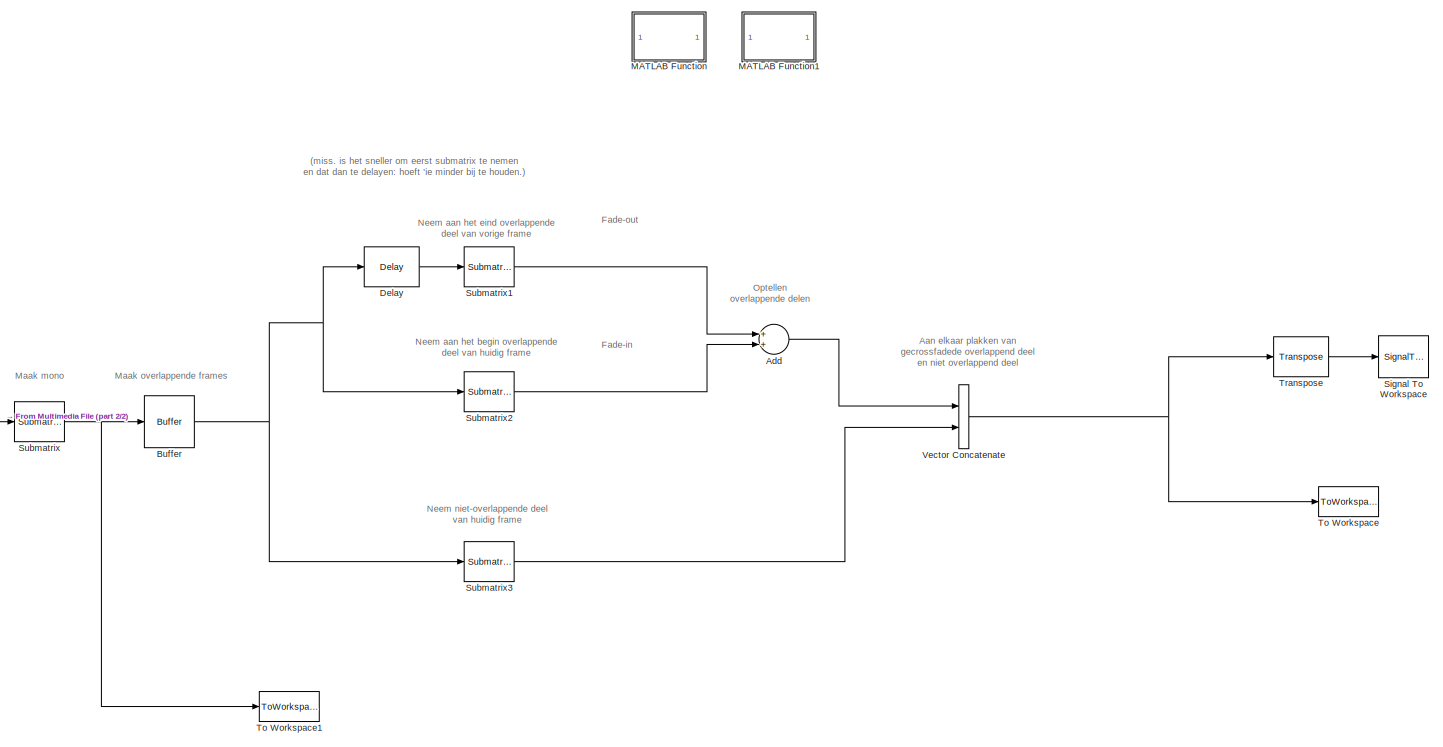
[diagram: root canvas - part 1/2, most of the canvas]
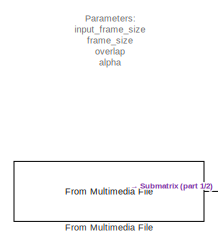
[diagram: root canvas - part 2/2, middle left region]
MODEL slx_2b7d1c36ef8d
KIND model
CONFIG InitFcn = input_frame_size = 1024;\nframe_size = 32;\noverlap = 0.4;\nalpha = 1.4;\n\nk = round(frame_size - alpha*(1-overlap)*frame_size);
BLOCK [Sum] Add
  InputSameDT = off
  Inputs = 2
  OutDataTypeStr = Inherit: Inherit via internal rule
  Ports = [2, 1]
  SaturateOnIntegerOverflow = off
BLOCK [Buffer] Buffer
  N = frame_size
  TreatMby1Signals = One channel
  V = round(frame_size*overlap)
BLOCK [Reference] Delay  REF=dspsigops/Delay
  InputProcessing = Columns as channels (frame based)
  Ports = [1, 1]
  SourceBlock = dspsigops/Delay
  SourceType = Delay
  UserDataPersistent = on
  delay = 1
  dif_ic_for_ch = off
  dif_ic_for_dly = off
  dly_unit = Frames
  ic = 0
  ic_detail = off
  reset_popup = None
BLOCK [Reference] From Multimedia File  REF=dspvision/From Multimedia File
  Ports = [0, 1]
  SourceBlock = dspvision/From Multimedia File
  SourceType = From Multimedia File
  audioDataType = double
  audioFrameSize = input_frame_size
  colorVideoFormat = Separate color signals
  computeAudioFrameSize = off
  dataOrg = Column-major
  fourcc = RGB
  inheritSampleTime = on
  inputFilename = <path>
  isIntensityVideo = off
  loop = on
  noAudioOutput = off
  numPlays = 1
  outSamplingMode = Frame based
  outputEOF = off
  outputStreams = Audio only
  userDefinedSampleTime = 1/30
  videoDataType = single
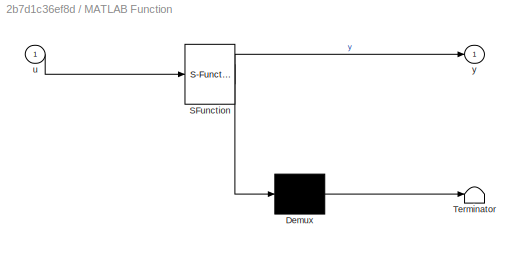
BLOCK [SubSystem] MATLAB Function
  ErrorFcn = Stateflow.Translate.translate
  FunctionWithSeparateData = off
  MaskHideContents = off
  MinAlgLoopOccurrences = off
  Opaque = off
  PermitHierarchicalResolution = ExplicitOnly
  Ports = [1, 1]
  PropExecContextOutsideSubsystem = off
  RTWSystemCode = Auto
  RequestExecContextInheritance = off
  SFBlockType = MATLAB Function
  TreatAsAtomicUnit = on
BLOCK [Demux] MATLAB Function/ Demux 
  Outputs = 1
  Ports = [1, 1]
BLOCK [S-Function] MATLAB Function/ SFunction 
  EnableBusSupport = on
  FunctionName = sf_sfun
  PortCounts = [1 2]
  Ports = [1, 2]
  Tag = Stateflow S-Function experimenteren_met_functions 2
BLOCK [Terminator] MATLAB Function/ Terminator 
BLOCK [Inport] MATLAB Function/u
  IconDisplay = Port number
BLOCK [Outport] MATLAB Function/y
  IconDisplay = Port number
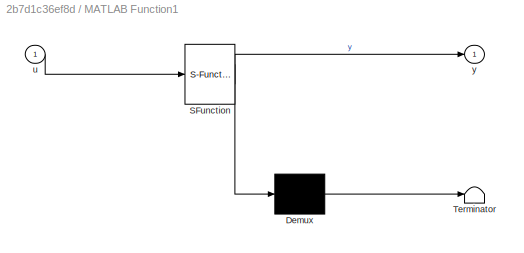
BLOCK [SubSystem] MATLAB Function1
  ErrorFcn = Stateflow.Translate.translate
  FunctionWithSeparateData = off
  MaskHideContents = off
  MinAlgLoopOccurrences = off
  Opaque = off
  PermitHierarchicalResolution = ExplicitOnly
  Ports = [1, 1]
  PropExecContextOutsideSubsystem = off
  RTWSystemCode = Auto
  RequestExecContextInheritance = off
  SFBlockType = MATLAB Function
  TreatAsAtomicUnit = on
BLOCK [Demux] MATLAB Function1/ Demux 
  Outputs = 1
  Ports = [1, 1]
BLOCK [S-Function] MATLAB Function1/ SFunction 
  EnableBusSupport = on
  FunctionName = sf_sfun
  PortCounts = [1 2]
  Ports = [1, 2]
  Tag = Stateflow S-Function experimenteren_met_functions 1
BLOCK [Terminator] MATLAB Function1/ Terminator 
BLOCK [Inport] MATLAB Function1/u
  IconDisplay = Port number
BLOCK [Outport] MATLAB Function1/y
  IconDisplay = Port number
BLOCK [SignalToWorkspace] Signal To Workspace
  CopyFcn = dspblkcopystw(gcbh);
  MaxDataPoints = inf
  Ports = [1]
  VariableName = yout
BLOCK [Reference] Submatrix  REF=dspmtrx3/Submatrix
  ColEndIndex = 1
  ColEndMode = Last
  ColSpan = One column
  ColStartIndex = 1
  ColStartMode = First
  Ports = [1, 1]
  RowEndIndex = 1
  RowEndMode = Last
  RowSpan = All rows
  RowStartIndex = 1
  RowStartMode = First
  SourceBlock = dspmtrx3/Submatrix
  SourceType = Submatrix
BLOCK [Reference] Submatrix1  REF=dspmtrx3/Submatrix
  ColEndIndex = 1
  ColEndMode = Last
  ColSpan = All columns
  ColStartIndex = k
  ColStartMode = Offset from last
  Ports = [1, 1]
  RowEndIndex = 1
  RowEndMode = Last
  RowSpan = Range of rows
  RowStartIndex = k-1
  RowStartMode = Offset from last
  SourceBlock = dspmtrx3/Submatrix
  SourceType = Submatrix
BLOCK [Reference] Submatrix2  REF=dspmtrx3/Submatrix
  ColEndIndex = 1
  ColEndMode = Last
  ColSpan = All columns
  ColStartIndex = k
  ColStartMode = Offset from last
  Ports = [1, 1]
  RowEndIndex = k
  RowEndMode = Index
  RowSpan = Range of rows
  RowStartIndex = 1
  RowStartMode = First
  SourceBlock = dspmtrx3/Submatrix
  SourceType = Submatrix
BLOCK [Reference] Submatrix3  REF=dspmtrx3/Submatrix
  ColEndIndex = 1
  ColEndMode = Last
  ColSpan = All columns
  ColStartIndex = k
  ColStartMode = Offset from last
  Ports = [1, 1]
  RowEndIndex = k
  RowEndMode = Offset from last
  RowSpan = Range of rows
  RowStartIndex = k+1
  RowStartMode = Index
  SourceBlock = dspmtrx3/Submatrix
  SourceType = Submatrix
BLOCK [ToWorkspace] To Workspace
  MaxDataPoints = inf
  Ports = [1]
  SampleTime = -1
  VariableName = simout
BLOCK [ToWorkspace] To Workspace1
  MaxDataPoints = inf
  Ports = [1]
  SampleTime = -1
  VariableName = simout1
BLOCK [Reference] Transpose  REF=dspmtrx3/Transpose
  Hermitian = off
  Ports = [1, 1]
  SourceBlock = dspmtrx3/Transpose
  SourceType = Transpose
  overflowFlag = off
BLOCK [Concatenate] Vector Concatenate
  Mode = Multidimensional array
  Ports = [2, 1]
ANNOTATION (root): (miss. is het sneller om eerst submatrix te nemen en dat dan te delayen: hoeft 'ie minder bij te houden.)
ANNOTATION (root): Aan elkaar plakken van gecrossfadede overlappend deel en niet overlappend deel
ANNOTATION (root): Fade-in
ANNOTATION (root): Fade-out
ANNOTATION (root): Maak mono
ANNOTATION (root): Maak overlappende frames
ANNOTATION (root): Neem aan het begin overlappende deel van huidig frame
ANNOTATION (root): Neem aan het eind overlappende deel van vorige frame
ANNOTATION (root): Neem niet-overlappende deel van huidig frame
ANNOTATION (root): Optellen overlappende delen
ANNOTATION (root): Parameters: input_frame_size frame_size overlap alpha aan te passen in Model Properties (klik rechts) >> Callbacks >> InitFcn k is het aantal overlappende samples per frame en wordt aangemaakt op basis van voorgaande parameters.
LINE Add:1 -> Vector Concatenate:1
NET Buffer:1 -> Delay:1, Submatrix2:1, Submatrix3:1
LINE Delay:1 -> Submatrix1:1
LINE From Multimedia File:1 -> Submatrix:1
LINE Submatrix1:1 -> Add:1
LINE Submatrix2:1 -> Add:2
LINE Submatrix3:1 -> Vector Concatenate:2
NET Submatrix:1 -> Buffer:1, To Workspace1:1
LINE Transpose:1 -> Signal To Workspace:1
NET Vector Concatenate:1 -> To Workspace:1, Transpose:1
note: NET lines group one-source signal fan-out (src -> all destinations, sorted); 1:1 wires keep LINE
note: 1 file-system path scrubbed to <path> (not preserved elsewhere — flat text is the only slx artifact)
